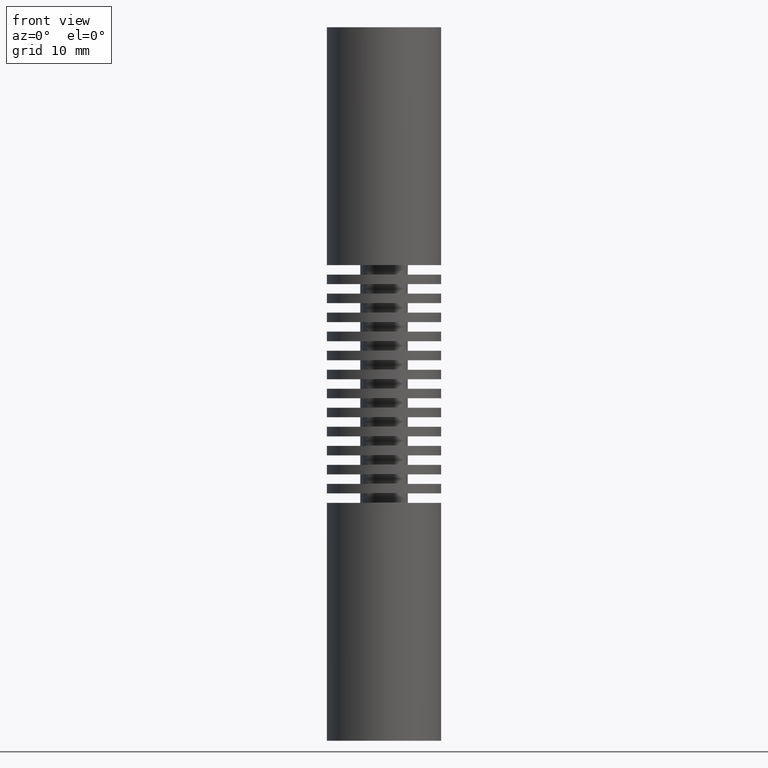
[diagram: clean part render]
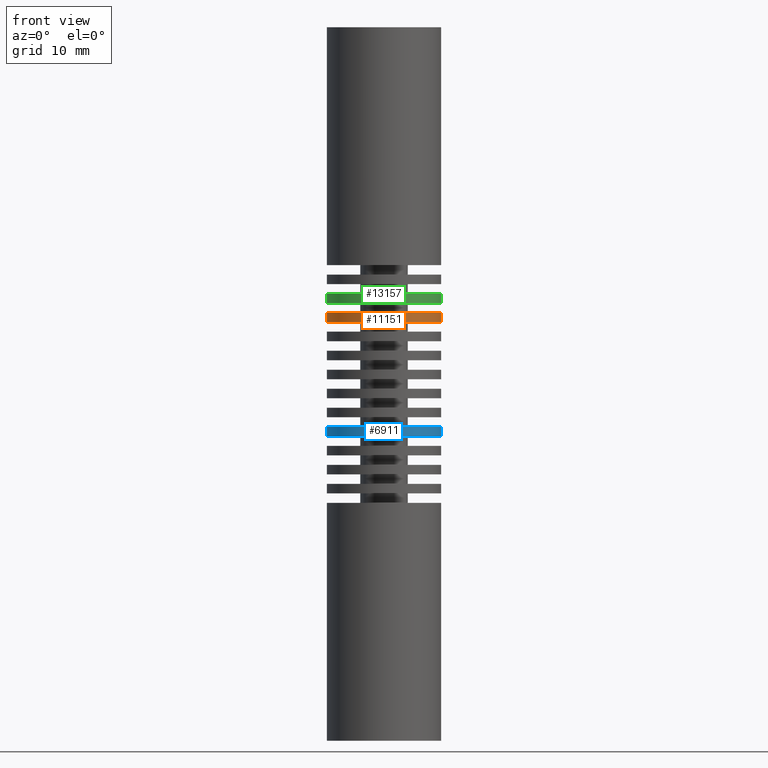
[diagram: same view with three faces highlighted in distinct colors, each labeled with its STEP entity id]
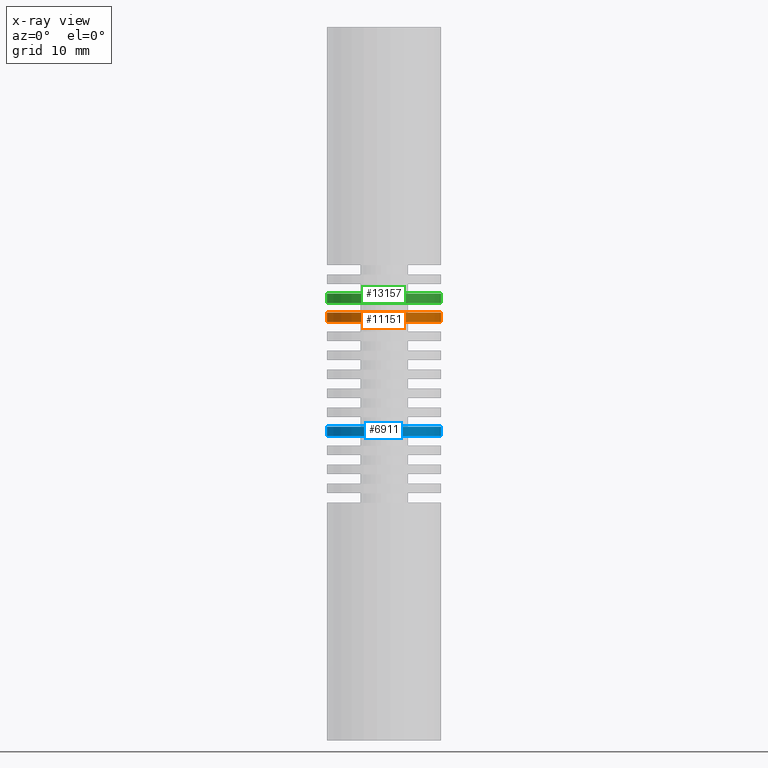
[diagram: x-ray of the same camera — body ghosted, the three highlighted faces saturated]
A machine part, front view with three faces highlighted in distinct colors.
The next image is the same camera in x-ray (body ghosted, the three faces saturated) — at least one of them is partly hidden behind the body in this view.
Their STEP definitions:

[orange] entity #11151 — the highlighted cylindrical surface (partial cylindrical patch) has radius 6 mm, axis along (0, -0, 1).
#75 = CARTESIAN_POINT ( 'NONE',  ( -6.000000000000002665, 7.347880794884122694E-16, 7.499999999999998224 ) ) ;
#911 = VERTEX_POINT ( 'NONE', #8569 ) ;
#1051 = VECTOR ( 'NONE', #2815, 1000.000000000000000 ) ;
#2197 = CIRCLE ( 'NONE', #10635, 6.000000000000002665 ) ;
#2441 = EDGE_CURVE ( 'NONE', #911, #7785, #5308, .T. ) ;
#2491 = ORIENTED_EDGE ( 'NONE', *, *, #11217, .T. ) ;
#2530 = CARTESIAN_POINT ( 'NONE',  ( -6.000000000000002665, 7.347880794884122694E-16, 6.499999999999998224 ) ) ;
#2815 = DIRECTION ( 'NONE',  ( 2.478176394252581634E-16, -0.000000000000000000, 1.000000000000000000 ) ) ;
#3319 = LINE ( 'NONE', #2530, #1051 ) ;
#3466 = CYLINDRICAL_SURFACE ( 'NONE', #12955, 6.000000000000002665 ) ;
#3593 = AXIS2_PLACEMENT_3D ( 'NONE', #3646, #8777, #10908 ) ;
#3646 = CARTESIAN_POINT ( 'NONE',  ( 0.000000000000000000, 0.000000000000000000, 7.499999999999996447 ) ) ;
#4350 = CARTESIAN_POINT ( 'NONE',  ( -6.000000000000002665, 7.347880794884122694E-16, 6.499999999999998224 ) ) ;
#5308 = LINE ( 'NONE', #8275, #6291 ) ;
#6075 = DIRECTION ( 'NONE',  ( -2.478176394252581141E-16, 0.000000000000000000, -1.000000000000000000 ) ) ;
#6104 = CIRCLE ( 'NONE', #3593, 6.000000000000002665 ) ;
#6242 = DIRECTION ( 'NONE',  ( -1.000000000000000000, 0.000000000000000000, 2.891205793294677340E-16 ) ) ;
#6291 = VECTOR ( 'NONE', #12454, 1000.000000000000000 ) ;
#6402 = EDGE_CURVE ( 'NONE', #911, #8548, #2197, .T. ) ;
#6490 = VERTEX_POINT ( 'NONE', #75 ) ;
#6955 = ORIENTED_EDGE ( 'NONE', *, *, #6402, .F. ) ;
#7294 = EDGE_CURVE ( 'NONE', #8548, #6490, #3319, .T. ) ;
#7649 = DIRECTION ( 'NONE',  ( 2.478176394252581634E-16, -0.000000000000000000, 1.000000000000000000 ) ) ;
#7785 = VERTEX_POINT ( 'NONE', #8886 ) ;
#7858 = ORIENTED_EDGE ( 'NONE', *, *, #2441, .T. ) ;
#8275 = CARTESIAN_POINT ( 'NONE',  ( 6.000000000000002665, 0.000000000000000000, 6.499999999999994671 ) ) ;
#8545 = DIRECTION ( 'NONE',  ( 1.000000000000000000, 0.000000000000000000, -2.891205793294677340E-16 ) ) ;
#8548 = VERTEX_POINT ( 'NONE', #4350 ) ;
#8569 = CARTESIAN_POINT ( 'NONE',  ( 6.000000000000002665, 0.000000000000000000, 6.499999999999994671 ) ) ;
#8777 = DIRECTION ( 'NONE',  ( -2.478176394252581141E-16, 0.000000000000000000, -1.000000000000000000 ) ) ;
#8886 = CARTESIAN_POINT ( 'NONE',  ( 6.000000000000002665, 0.000000000000000000, 7.499999999999994671 ) ) ;
#9060 = FACE_OUTER_BOUND ( 'NONE', #11162, .T. ) ;
#10414 = CARTESIAN_POINT ( 'NONE',  ( -2.478176394252581634E-16, 0.000000000000000000, 6.499999999999996447 ) ) ;
#10635 = AXIS2_PLACEMENT_3D ( 'NONE', #10414, #6075, #6242 ) ;
#10908 = DIRECTION ( 'NONE',  ( -1.000000000000000000, 0.000000000000000000, 2.891205793294677340E-16 ) ) ;
#11151 = ADVANCED_FACE ( 'NONE', ( #9060 ), #3466, .T. ) ;
#11162 = EDGE_LOOP ( 'NONE', ( #11315, #6955, #7858, #2491 ) ) ;
#11217 = EDGE_CURVE ( 'NONE', #7785, #6490, #6104, .T. ) ;
#11315 = ORIENTED_EDGE ( 'NONE', *, *, #7294, .F. ) ;
#11811 = CARTESIAN_POINT ( 'NONE',  ( -2.478176394252581634E-16, 0.000000000000000000, 6.499999999999996447 ) ) ;
#12454 = DIRECTION ( 'NONE',  ( 2.478176394252581634E-16, -0.000000000000000000, 1.000000000000000000 ) ) ;
#12955 = AXIS2_PLACEMENT_3D ( 'NONE', #11811, #7649, #8545 ) ;

[blue] entity #6911 — the highlighted cylindrical surface (partial cylindrical patch) has radius 6 mm, axis along (0, -0, 1).
#1126 = DIRECTION ( 'NONE',  ( 1.000000000000000000, 0.000000000000000000, -2.891205793294677340E-16 ) ) ;
#2083 = CARTESIAN_POINT ( 'NONE',  ( 6.000000000000002665, 0.000000000000000000, -5.500000000000005329 ) ) ;
#2201 = DIRECTION ( 'NONE',  ( -1.000000000000000000, 0.000000000000000000, 2.891205793294677340E-16 ) ) ;
#2289 = DIRECTION ( 'NONE',  ( -2.478176394252581141E-16, 0.000000000000000000, -1.000000000000000000 ) ) ;
#2340 = CIRCLE ( 'NONE', #6110, 6.000000000000002665 ) ;
#2634 = LINE ( 'NONE', #10490, #11771 ) ;
#3004 = AXIS2_PLACEMENT_3D ( 'NONE', #9431, #3198, #1126 ) ;
#3169 = CYLINDRICAL_SURFACE ( 'NONE', #3004, 6.000000000000002665 ) ;
#3198 = DIRECTION ( 'NONE',  ( 2.478176394252581634E-16, -0.000000000000000000, 1.000000000000000000 ) ) ;
#3247 = VERTEX_POINT ( 'NONE', #4257 ) ;
#3623 = ORIENTED_EDGE ( 'NONE', *, *, #8527, .T. ) ;
#4257 = CARTESIAN_POINT ( 'NONE',  ( 6.000000000000002665, 0.000000000000000000, -5.500000000000005329 ) ) ;
#4424 = VERTEX_POINT ( 'NONE', #7007 ) ;
#4436 = CARTESIAN_POINT ( 'NONE',  ( 0.000000000000000000, 0.000000000000000000, -4.500000000000003553 ) ) ;
#4933 = ORIENTED_EDGE ( 'NONE', *, *, #12682, .T. ) ;
#4971 = FACE_OUTER_BOUND ( 'NONE', #7425, .T. ) ;
#5203 = CARTESIAN_POINT ( 'NONE',  ( 6.000000000000002665, 0.000000000000000000, -4.500000000000005329 ) ) ;
#5242 = LINE ( 'NONE', #2083, #5404 ) ;
#5404 = VECTOR ( 'NONE', #7436, 1000.000000000000000 ) ;
#6110 = AXIS2_PLACEMENT_3D ( 'NONE', #10608, #2289, #2201 ) ;
#6271 = DIRECTION ( 'NONE',  ( 2.478176394252581634E-16, -0.000000000000000000, 1.000000000000000000 ) ) ;
#6866 = CIRCLE ( 'NONE', #11862, 6.000000000000002665 ) ;
#6911 = ADVANCED_FACE ( 'NONE', ( #4971 ), #3169, .T. ) ;
#7007 = CARTESIAN_POINT ( 'NONE',  ( -6.000000000000002665, 7.347880794884122694E-16, -4.500000000000002665 ) ) ;
#7425 = EDGE_LOOP ( 'NONE', ( #9130, #11437, #4933, #3623 ) ) ;
#7436 = DIRECTION ( 'NONE',  ( 2.478176394252581634E-16, -0.000000000000000000, 1.000000000000000000 ) ) ;
#8527 = EDGE_CURVE ( 'NONE', #12263, #4424, #6866, .T. ) ;
#8535 = DIRECTION ( 'NONE',  ( -1.000000000000000000, 0.000000000000000000, 2.891205793294677340E-16 ) ) ;
#9130 = ORIENTED_EDGE ( 'NONE', *, *, #12710, .F. ) ;
#9370 = CARTESIAN_POINT ( 'NONE',  ( -6.000000000000002665, 7.347880794884122694E-16, -5.500000000000002665 ) ) ;
#9431 = CARTESIAN_POINT ( 'NONE',  ( -2.478176394252581634E-16, 0.000000000000000000, -5.500000000000004441 ) ) ;
#10490 = CARTESIAN_POINT ( 'NONE',  ( -6.000000000000002665, 7.347880794884122694E-16, -5.500000000000002665 ) ) ;
#10608 = CARTESIAN_POINT ( 'NONE',  ( -2.478176394252581634E-16, 0.000000000000000000, -5.500000000000004441 ) ) ;
#10611 = EDGE_CURVE ( 'NONE', #3247, #11091, #2340, .T. ) ;
#11091 = VERTEX_POINT ( 'NONE', #9370 ) ;
#11437 = ORIENTED_EDGE ( 'NONE', *, *, #10611, .F. ) ;
#11752 = DIRECTION ( 'NONE',  ( -2.478176394252581141E-16, 0.000000000000000000, -1.000000000000000000 ) ) ;
#11771 = VECTOR ( 'NONE', #6271, 1000.000000000000000 ) ;
#11862 = AXIS2_PLACEMENT_3D ( 'NONE', #4436, #11752, #8535 ) ;
#12263 = VERTEX_POINT ( 'NONE', #5203 ) ;
#12682 = EDGE_CURVE ( 'NONE', #3247, #12263, #5242, .T. ) ;
#12710 = EDGE_CURVE ( 'NONE', #11091, #4424, #2634, .T. ) ;

[green] entity #13157 — the highlighted cylindrical surface (partial cylindrical patch) has radius 6 mm, axis along (0, -0, 1).
#173 = FACE_OUTER_BOUND ( 'NONE', #9535, .T. ) ;
#405 = ORIENTED_EDGE ( 'NONE', *, *, #5775, .T. ) ;
#1316 = CYLINDRICAL_SURFACE ( 'NONE', #4722, 6.000000000000002665 ) ;
#1451 = CARTESIAN_POINT ( 'NONE',  ( 6.000000000000002665, 0.000000000000000000, 8.499999999999994671 ) ) ;
#1860 = DIRECTION ( 'NONE',  ( -2.478176394252581141E-16, 0.000000000000000000, -1.000000000000000000 ) ) ;
#2002 = CARTESIAN_POINT ( 'NONE',  ( -6.000000000000002665, 7.347880794884122694E-16, 8.499999999999998224 ) ) ;
#2297 = DIRECTION ( 'NONE',  ( 2.478176394252581634E-16, -0.000000000000000000, 1.000000000000000000 ) ) ;
#2361 = EDGE_CURVE ( 'NONE', #8818, #12638, #3517, .T. ) ;
#3364 = CARTESIAN_POINT ( 'NONE',  ( -6.000000000000002665, 7.347880794884122694E-16, 8.499999999999998224 ) ) ;
#3425 = EDGE_CURVE ( 'NONE', #9402, #8324, #8336, .T. ) ;
#3517 = CIRCLE ( 'NONE', #8928, 6.000000000000002665 ) ;
#4232 = DIRECTION ( 'NONE',  ( 2.478176394252581634E-16, -0.000000000000000000, 1.000000000000000000 ) ) ;
#4722 = AXIS2_PLACEMENT_3D ( 'NONE', #11335, #7239, #11259 ) ;
#4977 = ORIENTED_EDGE ( 'NONE', *, *, #2361, .T. ) ;
#5207 = VECTOR ( 'NONE', #4232, 1000.000000000000000 ) ;
#5775 = EDGE_CURVE ( 'NONE', #9402, #8818, #11524, .T. ) ;
#7088 = ORIENTED_EDGE ( 'NONE', *, *, #7916, .F. ) ;
#7239 = DIRECTION ( 'NONE',  ( 2.478176394252581634E-16, -0.000000000000000000, 1.000000000000000000 ) ) ;
#7670 = CARTESIAN_POINT ( 'NONE',  ( 6.000000000000002665, 0.000000000000000000, 8.499999999999994671 ) ) ;
#7916 = EDGE_CURVE ( 'NONE', #8324, #12638, #8652, .T. ) ;
#8324 = VERTEX_POINT ( 'NONE', #2002 ) ;
#8336 = CIRCLE ( 'NONE', #9662, 6.000000000000002665 ) ;
#8652 = LINE ( 'NONE', #3364, #5207 ) ;
#8818 = VERTEX_POINT ( 'NONE', #12617 ) ;
#8928 = AXIS2_PLACEMENT_3D ( 'NONE', #13532, #1860, #9303 ) ;
#9095 = DIRECTION ( 'NONE',  ( -1.000000000000000000, 0.000000000000000000, 2.891205793294677340E-16 ) ) ;
#9303 = DIRECTION ( 'NONE',  ( -1.000000000000000000, 0.000000000000000000, 2.891205793294677340E-16 ) ) ;
#9402 = VERTEX_POINT ( 'NONE', #7670 ) ;
#9535 = EDGE_LOOP ( 'NONE', ( #7088, #11882, #405, #4977 ) ) ;
#9662 = AXIS2_PLACEMENT_3D ( 'NONE', #13274, #12196, #9095 ) ;
#11259 = DIRECTION ( 'NONE',  ( 1.000000000000000000, 0.000000000000000000, -2.891205793294677340E-16 ) ) ;
#11335 = CARTESIAN_POINT ( 'NONE',  ( -2.478176394252581634E-16, 0.000000000000000000, 8.499999999999996447 ) ) ;
#11524 = LINE ( 'NONE', #1451, #13012 ) ;
#11882 = ORIENTED_EDGE ( 'NONE', *, *, #3425, .F. ) ;
#12196 = DIRECTION ( 'NONE',  ( -2.478176394252581141E-16, 0.000000000000000000, -1.000000000000000000 ) ) ;
#12617 = CARTESIAN_POINT ( 'NONE',  ( 6.000000000000002665, 0.000000000000000000, 9.499999999999994671 ) ) ;
#12638 = VERTEX_POINT ( 'NONE', #13539 ) ;
#13012 = VECTOR ( 'NONE', #2297, 1000.000000000000000 ) ;
#13157 = ADVANCED_FACE ( 'NONE', ( #173 ), #1316, .T. ) ;
#13274 = CARTESIAN_POINT ( 'NONE',  ( -2.478176394252581634E-16, 0.000000000000000000, 8.499999999999996447 ) ) ;
#13532 = CARTESIAN_POINT ( 'NONE',  ( 0.000000000000000000, 0.000000000000000000, 9.499999999999996447 ) ) ;
#13539 = CARTESIAN_POINT ( 'NONE',  ( -6.000000000000002665, 7.347880794884122694E-16, 9.499999999999998224 ) ) ;